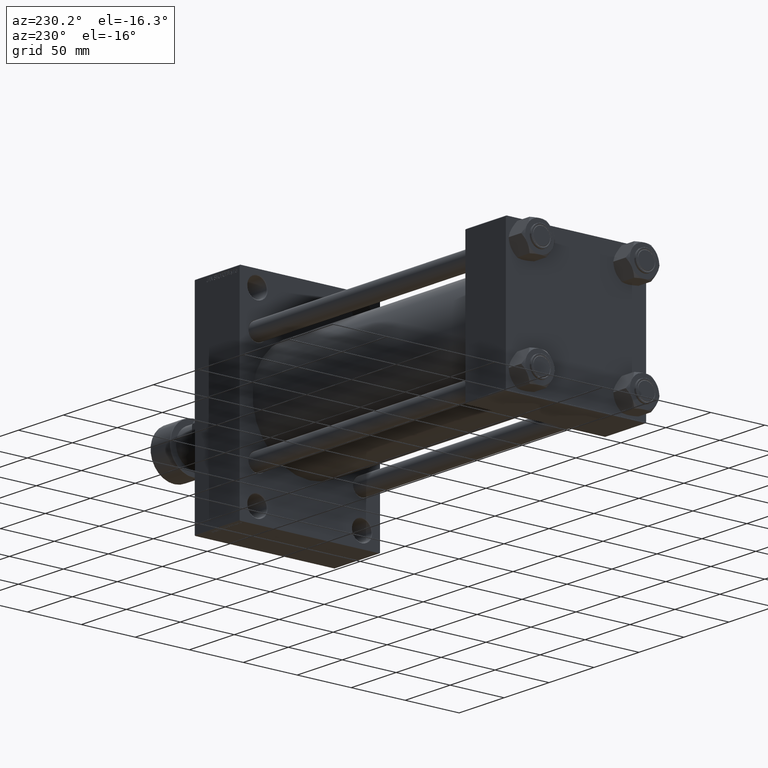
[diagram: clean part render]
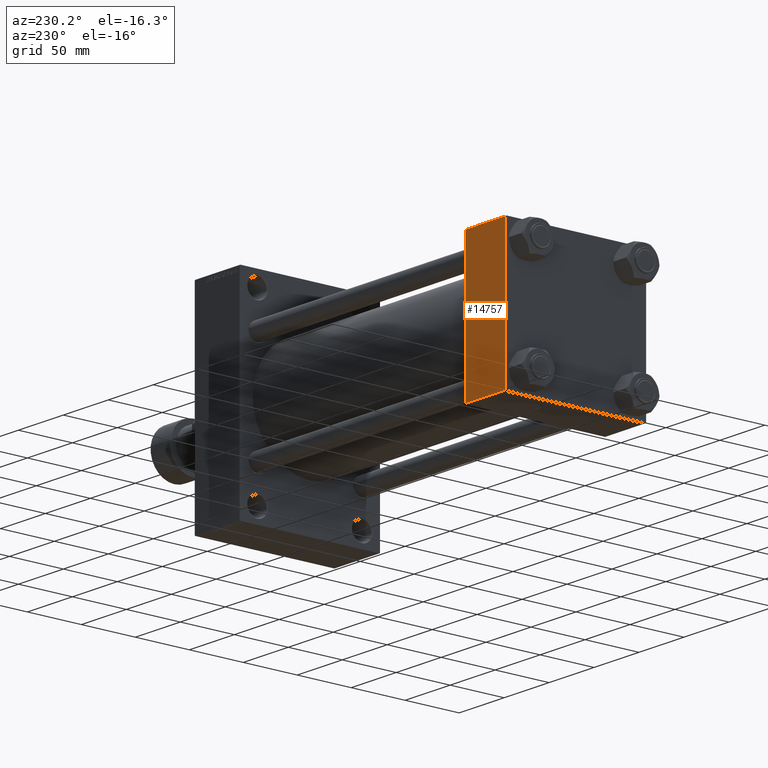
[diagram: same view with one face highlighted and labeled with its STEP entity id]
A machine part, auxiliary view. The second image highlights one B-rep face of the part: STEP entity #14757.
In plain terms, the highlighted planar face has unit normal (0, 1, 0).
Its self-contained STEP definition (entity closure, byte-faithful):
#1803 = CARTESIAN_POINT ( 'NONE',  ( 45.00000000000000000, 65.00000000000000000, 64.49999999999998579 ) ) ;
#3353 = CARTESIAN_POINT ( 'NONE',  ( 0.000000000000000000, 65.00000000000000000, -64.49999999999995737 ) ) ;
#3947 = DIRECTION ( 'NONE',  ( 0.000000000000000000, 0.000000000000000000, -1.000000000000000000 ) ) ;
#4182 = AXIS2_PLACEMENT_3D ( 'NONE', #17834, #32687, #47515 ) ;
#7066 = VECTOR ( 'NONE', #3947, 1000.000000000000000 ) ;
#8473 = EDGE_CURVE ( 'NONE', #47652, #29415, #44110, .T. ) ;
#8714 = VERTEX_POINT ( 'NONE', #3353 ) ;
#10955 = LINE ( 'NONE', #33347, #20392 ) ;
#12387 = EDGE_LOOP ( 'NONE', ( #22498, #25764, #45291, #43046 ) ) ;
#12997 = CARTESIAN_POINT ( 'NONE',  ( 0.000000000000000000, 65.00000000000000000, 64.49999999999998579 ) ) ;
#14344 = VECTOR ( 'NONE', #29067, 1000.000000000000000 ) ;
#14757 = ADVANCED_FACE ( 'NONE', ( #28043 ), #17597, .T. ) ;
#15781 = EDGE_CURVE ( 'NONE', #29415, #8714, #17840, .T. ) ;
#16876 = EDGE_CURVE ( 'NONE', #33555, #47652, #10955, .T. ) ;
#16891 = LINE ( 'NONE', #21281, #14344 ) ;
#17597 = PLANE ( 'NONE',  #4182 ) ;
#17834 = CARTESIAN_POINT ( 'NONE',  ( 45.00000000000000000, 65.00000000000000000, 65.00000000000001421 ) ) ;
#17840 = LINE ( 'NONE', #24638, #18962 ) ;
#18728 = DIRECTION ( 'NONE',  ( 1.000000000000000000, 0.000000000000000000, 0.000000000000000000 ) ) ;
#18962 = VECTOR ( 'NONE', #39508, 1000.000000000000000 ) ;
#20392 = VECTOR ( 'NONE', #18728, 1000.000000000000000 ) ;
#20631 = CARTESIAN_POINT ( 'NONE',  ( 45.00000000000000000, 65.00000000000000000, -64.49999999999995737 ) ) ;
#21281 = CARTESIAN_POINT ( 'NONE',  ( 0.000000000000000000, 65.00000000000000000, 65.00000000000001421 ) ) ;
#22498 = ORIENTED_EDGE ( 'NONE', *, *, #8473, .T. ) ;
#24638 = CARTESIAN_POINT ( 'NONE',  ( 45.00000000000000000, 65.00000000000000000, -64.49999999999995737 ) ) ;
#25764 = ORIENTED_EDGE ( 'NONE', *, *, #15781, .T. ) ;
#28043 = FACE_OUTER_BOUND ( 'NONE', #12387, .T. ) ;
#29067 = DIRECTION ( 'NONE',  ( 0.000000000000000000, 0.000000000000000000, -1.000000000000000000 ) ) ;
#29415 = VERTEX_POINT ( 'NONE', #20631 ) ;
#32687 = DIRECTION ( 'NONE',  ( -0.000000000000000000, 1.000000000000000000, 0.000000000000000000 ) ) ;
#33347 = CARTESIAN_POINT ( 'NONE',  ( 45.00000000000000000, 65.00000000000000000, 64.49999999999998579 ) ) ;
#33555 = VERTEX_POINT ( 'NONE', #12997 ) ;
#37281 = CARTESIAN_POINT ( 'NONE',  ( 45.00000000000000000, 65.00000000000000000, 65.00000000000001421 ) ) ;
#39508 = DIRECTION ( 'NONE',  ( -1.000000000000000000, 0.000000000000000000, 0.000000000000000000 ) ) ;
#43046 = ORIENTED_EDGE ( 'NONE', *, *, #16876, .T. ) ;
#43396 = EDGE_CURVE ( 'NONE', #33555, #8714, #16891, .T. ) ;
#44110 = LINE ( 'NONE', #37281, #7066 ) ;
#45291 = ORIENTED_EDGE ( 'NONE', *, *, #43396, .F. ) ;
#47515 = DIRECTION ( 'NONE',  ( 0.000000000000000000, -0.000000000000000000, 1.000000000000000000 ) ) ;
#47652 = VERTEX_POINT ( 'NONE', #1803 ) ;